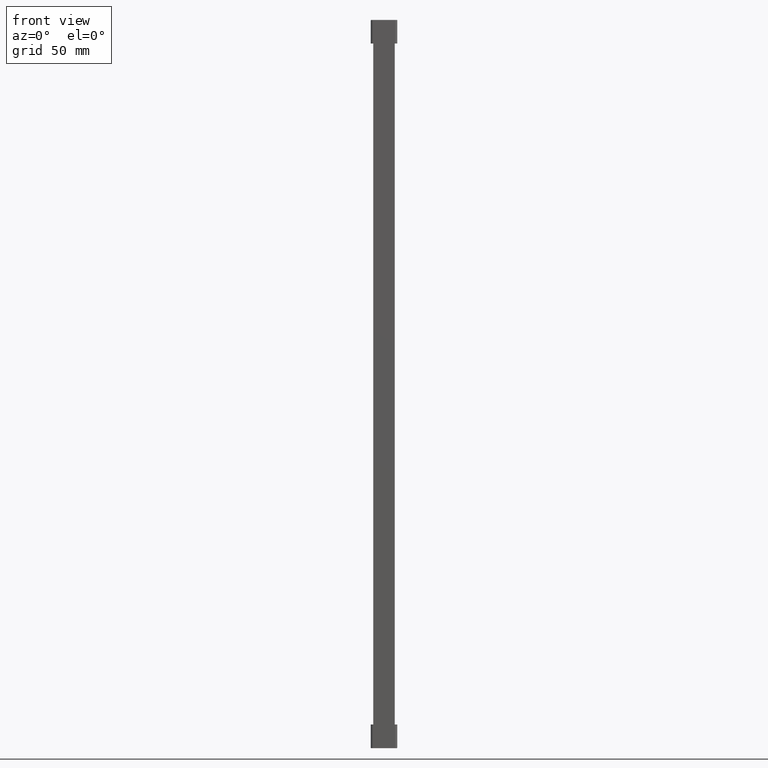
[diagram: clean part render]
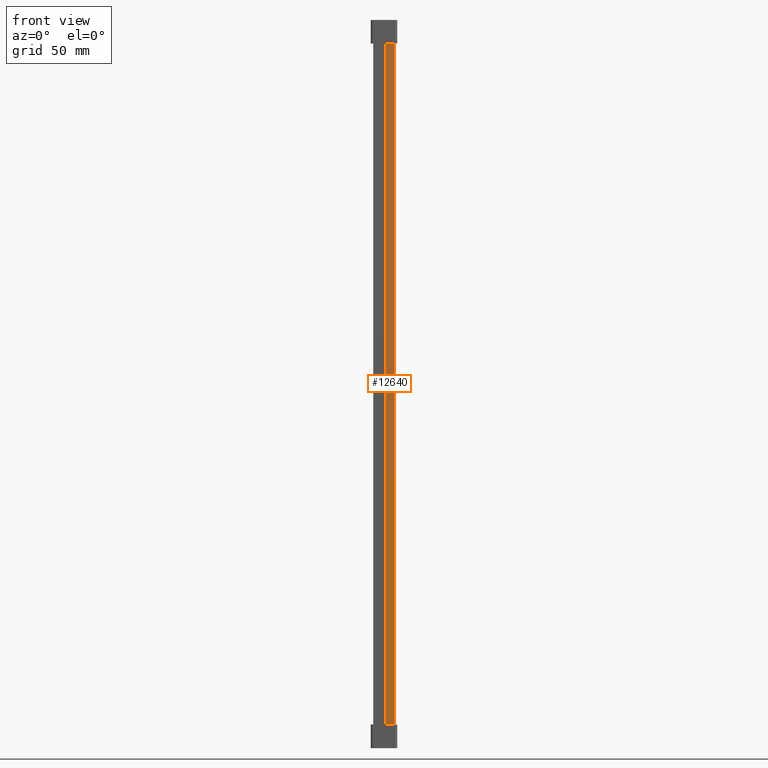
[diagram: same view with one face highlighted and labeled with its STEP entity id]
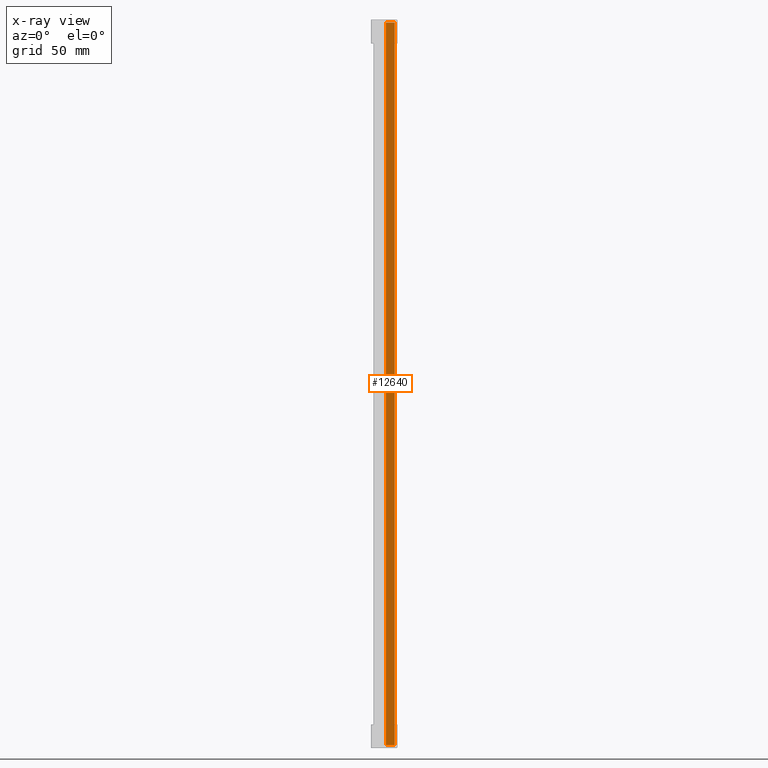
[diagram: x-ray of the same camera — body ghosted, the highlighted face saturated]
A machine part, front view. The second image highlights one B-rep face of the part: STEP entity #12640.
The next image is the same camera in x-ray: the body ghosted, the highlighted face saturated — about 0% of this face is hidden behind the body in this view.
In plain terms, the highlighted planar face has unit normal (0, -1, 0).
Its self-contained STEP definition (entity closure, byte-faithful):
#513 = CARTESIAN_POINT ( 'NONE',  ( 9.592820323031936900, -4.997532335876409000E-012, -103.8000000000066300 ) ) ;
#559 = CARTESIAN_POINT ( 'NONE',  ( 5.599999999999383200, -6.023345402697246300E-018, -103.8000000000038800 ) ) ;
#569 = CARTESIAN_POINT ( 'NONE',  ( 9.599999999999830900, -8.104411239329145600E-015, -103.7999030758417800 ) ) ;
#1270 = CARTESIAN_POINT ( 'NONE',  ( 5.599999999999383200, 0.0000000000000000000, 220.2000000000000500 ) ) ;
#1276 = DIRECTION ( 'NONE',  ( 0.0000000000000000000, -0.0000000000000000000, -1.000000000000000000 ) ) ;
#1313 = LINE ( 'NONE', #1270, #17213 ) ;
#1501 = CARTESIAN_POINT ( 'NONE',  ( 8.900000000277932700, -5.421010862427522200E-017, 217.7999999999938700 ) ) ;
#1525 = LINE ( 'NONE', #1501, #17251 ) ;
#1562 = DIRECTION ( 'NONE',  ( -1.000000000000000000, -0.0000000000000000000, 6.924738560343257600E-013 ) ) ;
#1607 = CARTESIAN_POINT ( 'NONE',  ( 9.597607430920863400, -8.131516293641283300E-017, 217.7999677721821600 ) ) ;
#1621 = CARTESIAN_POINT ( 'NONE',  ( 9.592820323304973600, -1.301042606982605300E-016, 217.7999999999933900 ) ) ;
#1634 = CARTESIAN_POINT ( 'NONE',  ( 9.599999999999830900, -1.070649645329435600E-014, 217.7999030758345800 ) ) ;
#1644 = CARTESIAN_POINT ( 'NONE',  ( 9.595213766936026900, 2.168404344971008900E-016, 217.7999999999933900 ) ) ;
#1770 = CARTESIAN_POINT ( 'NONE',  ( 9.599999999999830900, 0.0000000000000000000, 220.2000000000000500 ) ) ;
#1796 = DIRECTION ( 'NONE',  ( -0.0000000000000000000, 0.0000000000000000000, 1.000000000000000000 ) ) ;
#1825 = LINE ( 'NONE', #1770, #17314 ) ;
#2166 = CARTESIAN_POINT ( 'NONE',  ( 8.900000000053569900, 0.0000000000000000000, -103.8000000000061600 ) ) ;
#2175 = LINE ( 'NONE', #2166, #17306 ) ;
#2200 = DIRECTION ( 'NONE',  ( 1.000000000000000000, -0.0000000000000000000, -6.924738560343257600E-013 ) ) ;
#2420 = CARTESIAN_POINT ( 'NONE',  ( 9.595213766754019600, -1.626303258728256700E-016, -103.8000000000070900 ) ) ;
#2443 = CARTESIAN_POINT ( 'NONE',  ( 9.592820323031936900, -4.997532335876409000E-012, -103.8000000000066300 ) ) ;
#2451 = CARTESIAN_POINT ( 'NONE',  ( 9.599999999999830900, -8.104411239329145600E-015, -103.7999030758417800 ) ) ;
#2454 = CARTESIAN_POINT ( 'NONE',  ( 9.597607430829919300, 1.084202172485504400E-015, -103.7999677721938500 ) ) ;
#5491 = CARTESIAN_POINT ( 'NONE',  ( 6.099999999999830900, 0.0000000000000000000, 220.2000000000000500 ) ) ;
#5492 = DIRECTION ( 'NONE',  ( 0.0000000000000000000, -1.000000000000000000, 0.0000000000000000000 ) ) ;
#5493 = FACE_OUTER_BOUND ( 'NONE', #22825, .T. ) ;
#5494 = DIRECTION ( 'NONE',  ( 0.0000000000000000000, -0.0000000000000000000, -1.000000000000000000 ) ) ;
#5533 = PLANE ( 'NONE',  #10329 ) ;
#10329 = AXIS2_PLACEMENT_3D ( 'NONE', #5491, #5492, #5494 ) ;
#10418 = B_SPLINE_CURVE_WITH_KNOTS ( 'NONE', 3,
 ( #1634, #1607, #1644, #1621 ),
 .UNSPECIFIED., .F., .F.,
 ( 4, 4 ),
 ( 0.0000000000000000000, 7.180330893158277200E-006 ),
 .UNSPECIFIED. ) ;
#10471 = B_SPLINE_CURVE_WITH_KNOTS ( 'NONE', 3,
 ( #2443, #2420, #2454, #2451 ),
 .UNSPECIFIED., .F., .F.,
 ( 4, 4 ),
 ( 0.0000000000000000000, 7.180331166251878200E-006 ),
 .UNSPECIFIED. ) ;
#12640 = ADVANCED_FACE ( 'NONE', ( #5493 ), #5533, .T. ) ;
#14155 = ORIENTED_EDGE ( 'NONE', *, *, #28026, .T. ) ;
#14165 = ORIENTED_EDGE ( 'NONE', *, *, #27975, .T. ) ;
#14186 = ORIENTED_EDGE ( 'NONE', *, *, #27918, .T. ) ;
#14188 = ORIENTED_EDGE ( 'NONE', *, *, #27987, .T. ) ;
#14192 = ORIENTED_EDGE ( 'NONE', *, *, #28082, .T. ) ;
#14203 = ORIENTED_EDGE ( 'NONE', *, *, #28014, .T. ) ;
#17213 = VECTOR ( 'NONE', #1276, 1000.000000000000000 ) ;
#17251 = VECTOR ( 'NONE', #1562, 1000.000000000000000 ) ;
#17306 = VECTOR ( 'NONE', #2200, 1000.000000000000000 ) ;
#17314 = VECTOR ( 'NONE', #1796, 1000.000000000000000 ) ;
#18790 = VERTEX_POINT ( 'NONE', #30191 ) ;
#21546 = VERTEX_POINT ( 'NONE', #29960 ) ;
#21552 = VERTEX_POINT ( 'NONE', #29963 ) ;
#21559 = VERTEX_POINT ( 'NONE', #513 ) ;
#21562 = VERTEX_POINT ( 'NONE', #559 ) ;
#21573 = VERTEX_POINT ( 'NONE', #569 ) ;
#22825 = EDGE_LOOP ( 'NONE', ( #14188, #14165, #14186, #14155, #14192, #14203 ) ) ;
#27918 = EDGE_CURVE ( 'NONE', #18790, #21562, #1313, .T. ) ;
#27975 = EDGE_CURVE ( 'NONE', #21552, #18790, #1525, .T. ) ;
#27987 = EDGE_CURVE ( 'NONE', #21546, #21552, #10418, .T. ) ;
#28014 = EDGE_CURVE ( 'NONE', #21573, #21546, #1825, .T. ) ;
#28026 = EDGE_CURVE ( 'NONE', #21562, #21559, #2175, .T. ) ;
#28082 = EDGE_CURVE ( 'NONE', #21559, #21573, #10471, .T. ) ;
#29960 = CARTESIAN_POINT ( 'NONE',  ( 9.599999999999830900, -1.070649645329435600E-014, 217.7999030758345800 ) ) ;
#29963 = CARTESIAN_POINT ( 'NONE',  ( 9.592820323304973600, -1.301042606982605300E-016, 217.7999999999933900 ) ) ;
#30191 = CARTESIAN_POINT ( 'NONE',  ( 5.599999999999383200, -2.409338161078898500E-017, 217.7999999999952900 ) ) ;